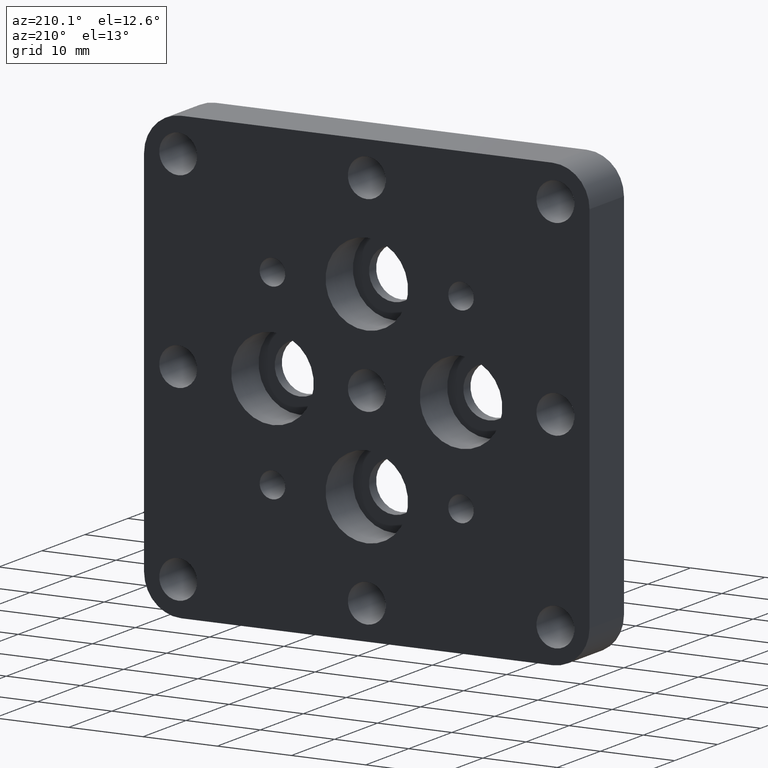
[diagram: clean part render]
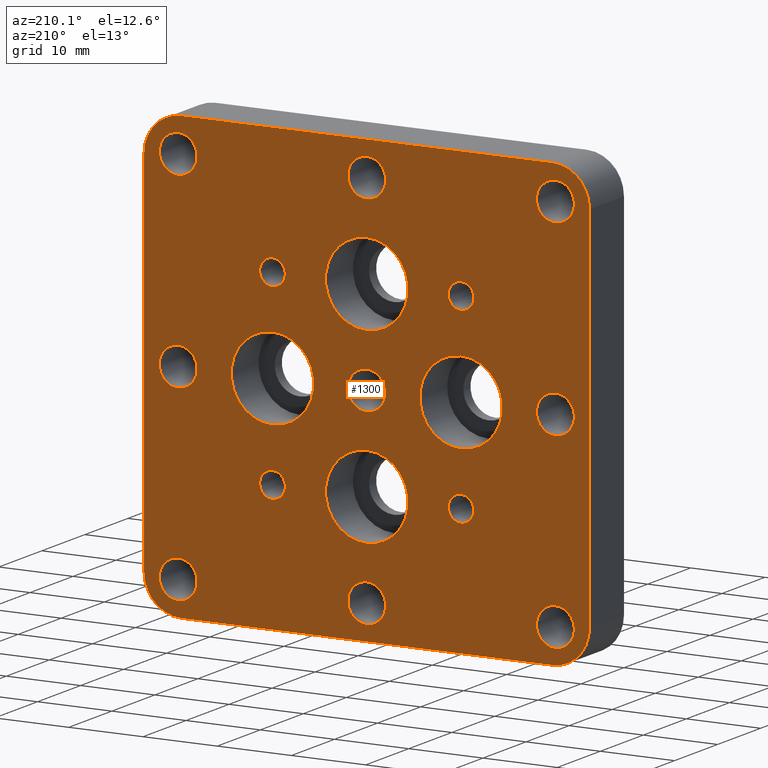
[diagram: same view with one face highlighted and labeled with its STEP entity id]
A machine part, auxiliary view. The second image highlights one B-rep face of the part: STEP entity #1300.
In plain terms, the highlighted planar face has unit normal (-0, 1, 0).
Its self-contained STEP definition (entity closure, byte-faithful):
#6 = EDGE_CURVE ( 'NONE', #554, #1283, #904, .T. ) ;
#7 = DIRECTION ( 'NONE',  ( 0.0000000000000000000, 0.0000000000000000000, 1.000000000000000000 ) ) ;
#12 = CIRCLE ( 'NONE', #1315, 2.552699999999998000 ) ;
#18 = EDGE_CURVE ( 'NONE', #1414, #1514, #625, .T. ) ;
#24 = CARTESIAN_POINT ( 'NONE',  ( -24.99999999999999600, 8.000000000000000000, -29.99999999999999600 ) ) ;
#32 = DIRECTION ( 'NONE',  ( 0.0000000000000000000, 0.0000000000000000000, 1.000000000000000000 ) ) ;
#37 = VERTEX_POINT ( 'NONE', #192 ) ;
#47 = AXIS2_PLACEMENT_3D ( 'NONE', #464, #1209, #627 ) ;
#58 = DIRECTION ( 'NONE',  ( 0.0000000000000000000, 0.0000000000000000000, 1.000000000000000000 ) ) ;
#62 = DIRECTION ( 'NONE',  ( -0.0000000000000000000, 1.000000000000000000, 0.0000000000000000000 ) ) ;
#67 = CARTESIAN_POINT ( 'NONE',  ( 25.40000000000000200, 8.000000000000000000, 22.84730000000000100 ) ) ;
#70 = VERTEX_POINT ( 'NONE', #1408 ) ;
#72 = AXIS2_PLACEMENT_3D ( 'NONE', #963, #1583, #1714 ) ;
#74 = EDGE_LOOP ( 'NONE', ( #1261, #1696 ) ) ;
#78 = CARTESIAN_POINT ( 'NONE',  ( 25.40000000000000200, 8.000000000000000000, 27.95269999999999700 ) ) ;
#87 = DIRECTION ( 'NONE',  ( 0.0000000000000000000, 0.0000000000000000000, 1.000000000000000000 ) ) ;
#92 = VERTEX_POINT ( 'NONE', #78 ) ;
#98 = AXIS2_PLACEMENT_3D ( 'NONE', #1937, #1798, #136 ) ;
#101 = CARTESIAN_POINT ( 'NONE',  ( -30.00000000000000000, 8.000000000000000000, -24.99999999999999300 ) ) ;
#112 = AXIS2_PLACEMENT_3D ( 'NONE', #184, #652, #780 ) ;
#115 = AXIS2_PLACEMENT_3D ( 'NONE', #655, #944, #58 ) ;
#118 = ORIENTED_EDGE ( 'NONE', *, *, #948, .F. ) ;
#119 = CARTESIAN_POINT ( 'NONE',  ( 1.555301434917207900E-015, 8.000000000000000000, -22.84730000000000100 ) ) ;
#120 = VERTEX_POINT ( 'NONE', #668 ) ;
#136 = DIRECTION ( 'NONE',  ( 0.0000000000000000000, 0.0000000000000000000, 1.000000000000000000 ) ) ;
#137 = AXIS2_PLACEMENT_3D ( 'NONE', #1872, #953, #1262 ) ;
#142 = DIRECTION ( 'NONE',  ( 1.000000000000000000, 0.0000000000000000000, -1.156482317317871500E-016 ) ) ;
#143 = ORIENTED_EDGE ( 'NONE', *, *, #733, .T. ) ;
#146 = CARTESIAN_POINT ( 'NONE',  ( -12.70000000000070800, 8.000000000000000000, -10.97279999999930000 ) ) ;
#150 = CARTESIAN_POINT ( 'NONE',  ( -12.69999999999999900, 8.000000000000000000, 3.110602869834276100E-015 ) ) ;
#151 = FACE_BOUND ( 'NONE', #1833, .T. ) ;
#153 = CARTESIAN_POINT ( 'NONE',  ( 0.0000000000000000000, 8.000000000000000000, -7.143750000000000700 ) ) ;
#156 = AXIS2_PLACEMENT_3D ( 'NONE', #686, #379, #959 ) ;
#168 = VERTEX_POINT ( 'NONE', #1737 ) ;
#169 = ORIENTED_EDGE ( 'NONE', *, *, #1478, .F. ) ;
#180 = DIRECTION ( 'NONE',  ( 0.0000000000000000000, 0.0000000000000000000, 1.000000000000000000 ) ) ;
#184 = CARTESIAN_POINT ( 'NONE',  ( 25.40000000000000200, 8.000000000000000000, 25.39999999999999900 ) ) ;
#192 = CARTESIAN_POINT ( 'NONE',  ( 1.867917023335478200E-015, 8.000000000000000000, 22.84730000000000100 ) ) ;
#194 = LINE ( 'NONE', #1496, #341 ) ;
#201 = AXIS2_PLACEMENT_3D ( 'NONE', #1535, #1046, #1669 ) ;
#208 = ORIENTED_EDGE ( 'NONE', *, *, #397, .F. ) ;
#212 = CARTESIAN_POINT ( 'NONE',  ( -12.70000000000070800, 8.000000000000000000, -12.69999999999929800 ) ) ;
#221 = CIRCLE ( 'NONE', #1900, 2.552699999999998000 ) ;
#223 = VECTOR ( 'NONE', #278, 1000.000000000000000 ) ;
#227 = CARTESIAN_POINT ( 'NONE',  ( 1.867917023335552300E-015, 8.000000000000000000, -27.95269999999999700 ) ) ;
#228 = CIRCLE ( 'NONE', #974, 1.727199999999998100 ) ;
#235 = CARTESIAN_POINT ( 'NONE',  ( -29.99999999999999600, 8.000000000000000000, 24.99999999999999600 ) ) ;
#239 = AXIS2_PLACEMENT_3D ( 'NONE', #150, #1517, #1949 ) ;
#244 = VECTOR ( 'NONE', #804, 1000.000000000000000 ) ;
#253 = ORIENTED_EDGE ( 'NONE', *, *, #1571, .F. ) ;
#256 = DIRECTION ( 'NONE',  ( -0.0000000000000000000, 1.000000000000000000, 0.0000000000000000000 ) ) ;
#258 = VERTEX_POINT ( 'NONE', #1276 ) ;
#265 = ORIENTED_EDGE ( 'NONE', *, *, #1515, .F. ) ;
#275 = EDGE_CURVE ( 'NONE', #1213, #92, #12, .T. ) ;
#278 = DIRECTION ( 'NONE',  ( -0.0000000000000000000, -0.0000000000000000000, -1.000000000000000000 ) ) ;
#279 = AXIS2_PLACEMENT_3D ( 'NONE', #1879, #813, #1735 ) ;
#289 = CARTESIAN_POINT ( 'NONE',  ( 12.69999999999999900, 8.000000000000000000, -5.556249999999998600 ) ) ;
#291 = EDGE_CURVE ( 'NONE', #1044, #375, #757, .T. ) ;
#304 = AXIS2_PLACEMENT_3D ( 'NONE', #1260, #680, #960 ) ;
#306 = DIRECTION ( 'NONE',  ( 0.0000000000000000000, 0.0000000000000000000, 1.000000000000000000 ) ) ;
#308 = CARTESIAN_POINT ( 'NONE',  ( 12.69999999999999900, 8.000000000000000000, 5.556249999999998600 ) ) ;
#326 = CARTESIAN_POINT ( 'NONE',  ( -25.39999999999999500, 8.000000000000000000, -25.40000000000000600 ) ) ;
#329 = EDGE_LOOP ( 'NONE', ( #1924, #855 ) ) ;
#332 = CARTESIAN_POINT ( 'NONE',  ( -25.39999999999999500, 8.000000000000000000, -25.40000000000000600 ) ) ;
#337 = VERTEX_POINT ( 'NONE', #1940 ) ;
#341 = VECTOR ( 'NONE', #142, 1000.000000000000000 ) ;
#349 = VERTEX_POINT ( 'NONE', #1925 ) ;
#350 = DIRECTION ( 'NONE',  ( -0.0000000000000000000, 1.000000000000000000, -0.0000000000000000000 ) ) ;
#356 = DIRECTION ( 'NONE',  ( 0.0000000000000000000, 0.0000000000000000000, 1.000000000000000000 ) ) ;
#359 = FACE_BOUND ( 'NONE', #1602, .T. ) ;
#365 = CIRCLE ( 'NONE', #72, 2.552699999999998000 ) ;
#366 = DIRECTION ( 'NONE',  ( -0.0000000000000000000, 1.000000000000000000, 0.0000000000000000000 ) ) ;
#369 = EDGE_LOOP ( 'NONE', ( #1764, #1142 ) ) ;
#372 = ORIENTED_EDGE ( 'NONE', *, *, #1280, .F. ) ;
#375 = VERTEX_POINT ( 'NONE', #873 ) ;
#379 = DIRECTION ( 'NONE',  ( -0.0000000000000000000, 1.000000000000000000, -0.0000000000000000000 ) ) ;
#380 = CIRCLE ( 'NONE', #942, 1.727199999999999800 ) ;
#381 = EDGE_CURVE ( 'NONE', #120, #1291, #228, .T. ) ;
#382 = CIRCLE ( 'NONE', #1345, 2.552699999999998400 ) ;
#383 = CIRCLE ( 'NONE', #1605, 2.552699999999998000 ) ;
#395 = VERTEX_POINT ( 'NONE', #146 ) ;
#396 = CARTESIAN_POINT ( 'NONE',  ( -30.00000000000000000, 8.000000000000000000, -29.99999999999999600 ) ) ;
#397 = EDGE_CURVE ( 'NONE', #1656, #1930, #1154, .T. ) ;
#406 = FACE_BOUND ( 'NONE', #74, .T. ) ;
#410 = EDGE_CURVE ( 'NONE', #1930, #1656, #414, .T. ) ;
#411 = CARTESIAN_POINT ( 'NONE',  ( -29.99999999999999600, 8.000000000000000000, 30.00000000000000400 ) ) ;
#413 = AXIS2_PLACEMENT_3D ( 'NONE', #1636, #1786, #880 ) ;
#414 = CIRCLE ( 'NONE', #1183, 2.552699999999998000 ) ;
#432 = CIRCLE ( 'NONE', #673, 1.727199999999998100 ) ;
#438 = EDGE_CURVE ( 'NONE', #375, #1044, #738, .T. ) ;
#447 = EDGE_LOOP ( 'NONE', ( #1392, #265 ) ) ;
#452 = AXIS2_PLACEMENT_3D ( 'NONE', #1186, #1508, #1331 ) ;
#455 = FACE_BOUND ( 'NONE', #487, .T. ) ;
#456 = CIRCLE ( 'NONE', #831, 5.000000000000000900 ) ;
#458 = EDGE_CURVE ( 'NONE', #527, #779, #1808, .T. ) ;
#460 = EDGE_LOOP ( 'NONE', ( #1653, #671 ) ) ;
#464 = CARTESIAN_POINT ( 'NONE',  ( 25.39999999999999900, 8.000000000000000000, 0.0000000000000000000 ) ) ;
#468 = ORIENTED_EDGE ( 'NONE', *, *, #631, .F. ) ;
#469 = VERTEX_POINT ( 'NONE', #1951 ) ;
#470 = CARTESIAN_POINT ( 'NONE',  ( -25.39999999999999500, 8.000000000000000000, 25.40000000000000600 ) ) ;
#481 = CARTESIAN_POINT ( 'NONE',  ( -24.99999999999999300, 8.000000000000000000, 25.00000000000000000 ) ) ;
#483 = VERTEX_POINT ( 'NONE', #153 ) ;
#484 = DIRECTION ( 'NONE',  ( 0.0000000000000000000, 0.0000000000000000000, 1.000000000000000000 ) ) ;
#487 = EDGE_LOOP ( 'NONE', ( #1405, #372 ) ) ;
#489 = CARTESIAN_POINT ( 'NONE',  ( 12.69999999999999900, 8.000000000000000000, 0.0000000000000000000 ) ) ;
#491 = ORIENTED_EDGE ( 'NONE', *, *, #709, .F. ) ;
#492 = ORIENTED_EDGE ( 'NONE', *, *, #1179, .F. ) ;
#494 = ORIENTED_EDGE ( 'NONE', *, *, #438, .F. ) ;
#499 = FACE_BOUND ( 'NONE', #460, .T. ) ;
#503 = VERTEX_POINT ( 'NONE', #24 ) ;
#507 = EDGE_LOOP ( 'NONE', ( #1554, #208 ) ) ;
#514 = DIRECTION ( 'NONE',  ( 0.0000000000000000000, 0.0000000000000000000, 1.000000000000000000 ) ) ;
#520 = CARTESIAN_POINT ( 'NONE',  ( -24.99999999999999600, 8.000000000000000000, -24.99999999999999300 ) ) ;
#524 = VERTEX_POINT ( 'NONE', #1842 ) ;
#527 = VERTEX_POINT ( 'NONE', #936 ) ;
#531 = EDGE_LOOP ( 'NONE', ( #947, #492 ) ) ;
#539 = EDGE_CURVE ( 'NONE', #1514, #1414, #621, .T. ) ;
#544 = CIRCLE ( 'NONE', #137, 2.552699999999998000 ) ;
#549 = CARTESIAN_POINT ( 'NONE',  ( 25.40000000000000200, 8.000000000000000000, 25.39999999999999900 ) ) ;
#552 = CARTESIAN_POINT ( 'NONE',  ( -30.00000000000000000, 8.000000000000000000, -29.99999999999999600 ) ) ;
#554 = VERTEX_POINT ( 'NONE', #943 ) ;
#555 = CARTESIAN_POINT ( 'NONE',  ( 25.39999999999999900, 8.000000000000000000, -25.39999999999999900 ) ) ;
#563 = DIRECTION ( 'NONE',  ( 0.0000000000000000000, 0.0000000000000000000, 1.000000000000000000 ) ) ;
#567 = DIRECTION ( 'NONE',  ( -0.0000000000000000000, 1.000000000000000000, -0.0000000000000000000 ) ) ;
#571 = EDGE_CURVE ( 'NONE', #92, #1213, #1826, .T. ) ;
#572 = CARTESIAN_POINT ( 'NONE',  ( 12.69999999999929900, 8.000000000000000000, -14.42719999999999900 ) ) ;
#578 = AXIS2_PLACEMENT_3D ( 'NONE', #698, #817, #848 ) ;
#581 = ORIENTED_EDGE ( 'NONE', *, *, #1461, .T. ) ;
#590 = ORIENTED_EDGE ( 'NONE', *, *, #1719, .F. ) ;
#591 = DIRECTION ( 'NONE',  ( 0.0000000000000000000, 0.0000000000000000000, 1.000000000000000000 ) ) ;
#595 = CIRCLE ( 'NONE', #201, 2.552699999999998000 ) ;
#603 = CARTESIAN_POINT ( 'NONE',  ( 25.39999999999999900, 8.000000000000000000, -27.95269999999999700 ) ) ;
#604 = AXIS2_PLACEMENT_3D ( 'NONE', #481, #366, #7 ) ;
#608 = VERTEX_POINT ( 'NONE', #647 ) ;
#610 = EDGE_CURVE ( 'NONE', #1114, #1257, #1270, .T. ) ;
#614 = CARTESIAN_POINT ( 'NONE',  ( -25.39999999999999500, 8.000000000000000000, -22.84730000000000800 ) ) ;
#620 = LINE ( 'NONE', #1626, #223 ) ;
#621 = CIRCLE ( 'NONE', #1861, 5.556249999999998600 ) ;
#625 = CIRCLE ( 'NONE', #1504, 5.556249999999998600 ) ;
#627 = DIRECTION ( 'NONE',  ( 0.0000000000000000000, 0.0000000000000000000, 1.000000000000000000 ) ) ;
#629 = CARTESIAN_POINT ( 'NONE',  ( 24.99999999999999600, 8.000000000000000000, 24.99999999999998900 ) ) ;
#630 = ORIENTED_EDGE ( 'NONE', *, *, #1390, .T. ) ;
#631 = EDGE_CURVE ( 'NONE', #1283, #554, #365, .T. ) ;
#633 = DIRECTION ( 'NONE',  ( 0.0000000000000000000, 0.0000000000000000000, 1.000000000000000000 ) ) ;
#634 = CARTESIAN_POINT ( 'NONE',  ( 30.00000000000000000, 8.000000000000000000, -24.99999999999999300 ) ) ;
#636 = LINE ( 'NONE', #552, #1444 ) ;
#638 = CIRCLE ( 'NONE', #789, 5.556249999999998600 ) ;
#647 = CARTESIAN_POINT ( 'NONE',  ( -12.70000000000000100, 8.000000000000000000, 14.42720000000070400 ) ) ;
#652 = DIRECTION ( 'NONE',  ( -0.0000000000000000000, 1.000000000000000000, -0.0000000000000000000 ) ) ;
#654 = EDGE_CURVE ( 'NONE', #168, #70, #1477, .T. ) ;
#655 = CARTESIAN_POINT ( 'NONE',  ( 24.99999999999999300, 8.000000000000000000, -24.99999999999999300 ) ) ;
#659 = DIRECTION ( 'NONE',  ( -0.0000000000000000000, 1.000000000000000000, -0.0000000000000000000 ) ) ;
#663 = DIRECTION ( 'NONE',  ( -0.0000000000000000000, 1.000000000000000000, -0.0000000000000000000 ) ) ;
#668 = CARTESIAN_POINT ( 'NONE',  ( 12.69999999999929900, 8.000000000000000000, -10.97280000000000300 ) ) ;
#671 = ORIENTED_EDGE ( 'NONE', *, *, #1613, .F. ) ;
#673 = AXIS2_PLACEMENT_3D ( 'NONE', #1678, #1374, #1068 ) ;
#680 = DIRECTION ( 'NONE',  ( -0.0000000000000000000, 1.000000000000000000, -0.0000000000000000000 ) ) ;
#686 = CARTESIAN_POINT ( 'NONE',  ( 1.555301434917133900E-015, 8.000000000000000000, 25.39999999999999900 ) ) ;
#694 = DIRECTION ( 'NONE',  ( 0.0000000000000000000, 0.0000000000000000000, 1.000000000000000000 ) ) ;
#698 = CARTESIAN_POINT ( 'NONE',  ( -25.39999999999999500, 8.000000000000000000, 25.40000000000000600 ) ) ;
#707 = DIRECTION ( 'NONE',  ( 0.0000000000000000000, 0.0000000000000000000, 1.000000000000000000 ) ) ;
#709 = EDGE_CURVE ( 'NONE', #945, #1339, #544, .T. ) ;
#713 = AXIS2_PLACEMENT_3D ( 'NONE', #927, #1067, #484 ) ;
#721 = ORIENTED_EDGE ( 'NONE', *, *, #1849, .F. ) ;
#731 = CIRCLE ( 'NONE', #1553, 1.727199999999998100 ) ;
#733 = EDGE_CURVE ( 'NONE', #503, #1338, #1870, .T. ) ;
#734 = CARTESIAN_POINT ( 'NONE',  ( -12.70000000000000100, 8.000000000000000000, 12.70000000000070500 ) ) ;
#735 = CIRCLE ( 'NONE', #98, 1.727199999999999800 ) ;
#737 = AXIS2_PLACEMENT_3D ( 'NONE', #520, #1433, #87 ) ;
#738 = CIRCLE ( 'NONE', #1806, 5.556249999999998600 ) ;
#750 = DIRECTION ( 'NONE',  ( -0.0000000000000000000, 1.000000000000000000, -0.0000000000000000000 ) ) ;
#753 = CARTESIAN_POINT ( 'NONE',  ( 1.555301434917207900E-015, 8.000000000000000000, -25.39999999999999900 ) ) ;
#757 = CIRCLE ( 'NONE', #413, 5.556249999999998600 ) ;
#767 = EDGE_CURVE ( 'NONE', #1339, #945, #1053, .T. ) ;
#768 = CARTESIAN_POINT ( 'NONE',  ( -12.69999999999999900, 8.000000000000000000, 5.556250000000002100 ) ) ;
#775 = DIRECTION ( 'NONE',  ( 0.0000000000000000000, 0.0000000000000000000, 1.000000000000000000 ) ) ;
#779 = VERTEX_POINT ( 'NONE', #1593 ) ;
#780 = DIRECTION ( 'NONE',  ( 0.0000000000000000000, 0.0000000000000000000, 1.000000000000000000 ) ) ;
#789 = AXIS2_PLACEMENT_3D ( 'NONE', #1456, #659, #514 ) ;
#792 = FACE_BOUND ( 'NONE', #531, .T. ) ;
#804 = DIRECTION ( 'NONE',  ( 5.782411586589357400E-017, 0.0000000000000000000, 1.000000000000000000 ) ) ;
#813 = DIRECTION ( 'NONE',  ( -0.0000000000000000000, 1.000000000000000000, -0.0000000000000000000 ) ) ;
#817 = DIRECTION ( 'NONE',  ( -0.0000000000000000000, 1.000000000000000000, -0.0000000000000000000 ) ) ;
#826 = CARTESIAN_POINT ( 'NONE',  ( 12.70000000000000100, 8.000000000000000000, 12.69999999999999900 ) ) ;
#831 = AXIS2_PLACEMENT_3D ( 'NONE', #629, #62, #1822 ) ;
#833 = VERTEX_POINT ( 'NONE', #1756 ) ;
#838 = ORIENTED_EDGE ( 'NONE', *, *, #458, .F. ) ;
#841 = ORIENTED_EDGE ( 'NONE', *, *, #1745, .T. ) ;
#848 = DIRECTION ( 'NONE',  ( 0.0000000000000000000, 0.0000000000000000000, 1.000000000000000000 ) ) ;
#850 = AXIS2_PLACEMENT_3D ( 'NONE', #1116, #1898, #983 ) ;
#855 = ORIENTED_EDGE ( 'NONE', *, *, #1815, .F. ) ;
#869 = CARTESIAN_POINT ( 'NONE',  ( 25.39999999999999900, 8.000000000000000000, -22.84730000000000100 ) ) ;
#873 = CARTESIAN_POINT ( 'NONE',  ( 0.0000000000000000000, 8.000000000000000000, 18.25624999999999800 ) ) ;
#880 = DIRECTION ( 'NONE',  ( 0.0000000000000000000, 0.0000000000000000000, 1.000000000000000000 ) ) ;
#886 = CARTESIAN_POINT ( 'NONE',  ( 24.99999999999999300, 8.000000000000000000, -29.99999999999999600 ) ) ;
#896 = FACE_BOUND ( 'NONE', #329, .T. ) ;
#898 = EDGE_CURVE ( 'NONE', #1388, #1607, #620, .T. ) ;
#903 = CARTESIAN_POINT ( 'NONE',  ( 0.0000000000000000000, 8.000000000000000000, 12.69999999999999900 ) ) ;
#904 = CIRCLE ( 'NONE', #713, 2.552699999999998000 ) ;
#905 = ORIENTED_EDGE ( 'NONE', *, *, #291, .F. ) ;
#907 = DIRECTION ( 'NONE',  ( 0.0000000000000000000, 0.0000000000000000000, 1.000000000000000000 ) ) ;
#910 = DIRECTION ( 'NONE',  ( -0.0000000000000000000, 1.000000000000000000, -0.0000000000000000000 ) ) ;
#914 = ORIENTED_EDGE ( 'NONE', *, *, #275, .F. ) ;
#927 = CARTESIAN_POINT ( 'NONE',  ( -25.39999999999999900, 8.000000000000000000, 3.110602869834267800E-015 ) ) ;
#933 = LINE ( 'NONE', #396, #244 ) ;
#936 = CARTESIAN_POINT ( 'NONE',  ( -25.39999999999999500, 8.000000000000000000, 27.95270000000000400 ) ) ;
#942 = AXIS2_PLACEMENT_3D ( 'NONE', #734, #1203, #591 ) ;
#943 = CARTESIAN_POINT ( 'NONE',  ( -25.39999999999999900, 8.000000000000000000, -2.552699999999994900 ) ) ;
#944 = DIRECTION ( 'NONE',  ( -0.0000000000000000000, 1.000000000000000000, 0.0000000000000000000 ) ) ;
#945 = VERTEX_POINT ( 'NONE', #603 ) ;
#946 = VERTEX_POINT ( 'NONE', #886 ) ;
#947 = ORIENTED_EDGE ( 'NONE', *, *, #1238, .F. ) ;
#948 = EDGE_CURVE ( 'NONE', #1257, #1114, #1450, .T. ) ;
#950 = CARTESIAN_POINT ( 'NONE',  ( 24.99999999999999600, 8.000000000000000000, 29.99999999999999600 ) ) ;
#953 = DIRECTION ( 'NONE',  ( -0.0000000000000000000, 1.000000000000000000, -0.0000000000000000000 ) ) ;
#959 = DIRECTION ( 'NONE',  ( 0.0000000000000000000, 0.0000000000000000000, 1.000000000000000000 ) ) ;
#960 = DIRECTION ( 'NONE',  ( 0.0000000000000000000, 0.0000000000000000000, 1.000000000000000000 ) ) ;
#962 = ORIENTED_EDGE ( 'NONE', *, *, #571, .F. ) ;
#963 = CARTESIAN_POINT ( 'NONE',  ( -25.39999999999999900, 8.000000000000000000, 3.110602869834267800E-015 ) ) ;
#970 = DIRECTION ( 'NONE',  ( -0.0000000000000000000, 1.000000000000000000, -0.0000000000000000000 ) ) ;
#974 = AXIS2_PLACEMENT_3D ( 'NONE', #1020, #567, #1013 ) ;
#979 = FACE_BOUND ( 'NONE', #1573, .T. ) ;
#980 = CIRCLE ( 'NONE', #850, 1.727199999999999800 ) ;
#983 = DIRECTION ( 'NONE',  ( 0.0000000000000000000, 0.0000000000000000000, 1.000000000000000000 ) ) ;
#986 = CARTESIAN_POINT ( 'NONE',  ( 30.00000000000000000, 8.000000000000000000, 24.99999999999997900 ) ) ;
#987 = EDGE_CURVE ( 'NONE', #608, #349, #735, .T. ) ;
#993 = CARTESIAN_POINT ( 'NONE',  ( 25.39999999999999900, 8.000000000000000000, -2.552699999999998000 ) ) ;
#1002 = DIRECTION ( 'NONE',  ( 0.0000000000000000000, -0.0000000000000000000, 1.000000000000000000 ) ) ;
#1013 = DIRECTION ( 'NONE',  ( 0.0000000000000000000, 0.0000000000000000000, 1.000000000000000000 ) ) ;
#1020 = CARTESIAN_POINT ( 'NONE',  ( 12.69999999999929900, 8.000000000000000000, -12.70000000000000100 ) ) ;
#1027 = EDGE_CURVE ( 'NONE', #1741, #1388, #456, .T. ) ;
#1029 = FACE_BOUND ( 'NONE', #1580, .T. ) ;
#1044 = VERTEX_POINT ( 'NONE', #1363 ) ;
#1046 = DIRECTION ( 'NONE',  ( -0.0000000000000000000, 1.000000000000000000, -0.0000000000000000000 ) ) ;
#1047 = ORIENTED_EDGE ( 'NONE', *, *, #1059, .T. ) ;
#1049 = FACE_BOUND ( 'NONE', #1853, .T. ) ;
#1053 = CIRCLE ( 'NONE', #1168, 2.552699999999998000 ) ;
#1059 = EDGE_CURVE ( 'NONE', #1285, #469, #1121, .T. ) ;
#1067 = DIRECTION ( 'NONE',  ( -0.0000000000000000000, 1.000000000000000000, -0.0000000000000000000 ) ) ;
#1068 = DIRECTION ( 'NONE',  ( 0.0000000000000000000, 0.0000000000000000000, 1.000000000000000000 ) ) ;
#1072 = FACE_BOUND ( 'NONE', #1630, .T. ) ;
#1083 = ORIENTED_EDGE ( 'NONE', *, *, #610, .F. ) ;
#1084 = DIRECTION ( 'NONE',  ( -0.0000000000000000000, 1.000000000000000000, -0.0000000000000000000 ) ) ;
#1113 = EDGE_CURVE ( 'NONE', #1192, #37, #595, .T. ) ;
#1114 = VERTEX_POINT ( 'NONE', #768 ) ;
#1116 = CARTESIAN_POINT ( 'NONE',  ( 12.70000000000000100, 8.000000000000000000, 12.69999999999999900 ) ) ;
#1117 = DIRECTION ( 'NONE',  ( -0.0000000000000000000, 1.000000000000000000, -0.0000000000000000000 ) ) ;
#1119 = FACE_BOUND ( 'NONE', #1489, .T. ) ;
#1121 = CIRCLE ( 'NONE', #604, 5.000000000000000900 ) ;
#1142 = ORIENTED_EDGE ( 'NONE', *, *, #1208, .F. ) ;
#1150 = FACE_BOUND ( 'NONE', #369, .T. ) ;
#1154 = CIRCLE ( 'NONE', #452, 2.552699999999998000 ) ;
#1159 = VERTEX_POINT ( 'NONE', #614 ) ;
#1168 = AXIS2_PLACEMENT_3D ( 'NONE', #555, #1910, #694 ) ;
#1179 = EDGE_CURVE ( 'NONE', #833, #483, #1240, .T. ) ;
#1183 = AXIS2_PLACEMENT_3D ( 'NONE', #753, #1830, #1513 ) ;
#1186 = CARTESIAN_POINT ( 'NONE',  ( 1.555301434917207900E-015, 8.000000000000000000, -25.39999999999999900 ) ) ;
#1192 = VERTEX_POINT ( 'NONE', #1877 ) ;
#1198 = FACE_BOUND ( 'NONE', #1604, .T. ) ;
#1203 = DIRECTION ( 'NONE',  ( -0.0000000000000000000, 1.000000000000000000, -0.0000000000000000000 ) ) ;
#1208 = EDGE_CURVE ( 'NONE', #258, #337, #1749, .T. ) ;
#1209 = DIRECTION ( 'NONE',  ( -0.0000000000000000000, 1.000000000000000000, -0.0000000000000000000 ) ) ;
#1212 = ORIENTED_EDGE ( 'NONE', *, *, #767, .F. ) ;
#1213 = VERTEX_POINT ( 'NONE', #67 ) ;
#1218 = CIRCLE ( 'NONE', #47, 2.552699999999998000 ) ;
#1238 = EDGE_CURVE ( 'NONE', #483, #833, #638, .T. ) ;
#1240 = CIRCLE ( 'NONE', #304, 5.556249999999998600 ) ;
#1244 = EDGE_CURVE ( 'NONE', #1338, #1285, #933, .T. ) ;
#1255 = EDGE_CURVE ( 'NONE', #70, #168, #382, .T. ) ;
#1257 = VERTEX_POINT ( 'NONE', #1273 ) ;
#1259 = ORIENTED_EDGE ( 'NONE', *, *, #898, .T. ) ;
#1260 = CARTESIAN_POINT ( 'NONE',  ( 0.0000000000000000000, 8.000000000000000000, -12.69999999999999900 ) ) ;
#1261 = ORIENTED_EDGE ( 'NONE', *, *, #539, .F. ) ;
#1262 = DIRECTION ( 'NONE',  ( 0.0000000000000000000, 0.0000000000000000000, 1.000000000000000000 ) ) ;
#1265 = DIRECTION ( 'NONE',  ( 0.0000000000000000000, 0.0000000000000000000, 1.000000000000000000 ) ) ;
#1267 = CARTESIAN_POINT ( 'NONE',  ( -25.39999999999999900, 8.000000000000000000, 2.552700000000001100 ) ) ;
#1270 = CIRCLE ( 'NONE', #1827, 5.556249999999998600 ) ;
#1273 = CARTESIAN_POINT ( 'NONE',  ( -12.69999999999999900, 8.000000000000000000, -5.556249999999995000 ) ) ;
#1276 = CARTESIAN_POINT ( 'NONE',  ( 12.70000000000000100, 8.000000000000000000, 10.97279999999999900 ) ) ;
#1280 = EDGE_CURVE ( 'NONE', #1291, #120, #731, .T. ) ;
#1283 = VERTEX_POINT ( 'NONE', #1267 ) ;
#1285 = VERTEX_POINT ( 'NONE', #235 ) ;
#1291 = VERTEX_POINT ( 'NONE', #572 ) ;
#1294 = FACE_BOUND ( 'NONE', #1440, .T. ) ;
#1300 = ADVANCED_FACE ( 'NONE', ( #979, #896, #1072, #1803, #151, #1150, #1294, #499, #455, #1198, #792, #406, #359, #1393, #1119, #1029, #1049, #1886 ), #1319, .T. ) ;
#1312 = DIRECTION ( 'NONE',  ( -1.000000000000000000, -0.0000000000000000000, -0.0000000000000000000 ) ) ;
#1315 = AXIS2_PLACEMENT_3D ( 'NONE', #549, #1616, #707 ) ;
#1319 = PLANE ( 'NONE',  #1519 ) ;
#1331 = DIRECTION ( 'NONE',  ( 0.0000000000000000000, 0.0000000000000000000, 1.000000000000000000 ) ) ;
#1338 = VERTEX_POINT ( 'NONE', #101 ) ;
#1339 = VERTEX_POINT ( 'NONE', #869 ) ;
#1345 = AXIS2_PLACEMENT_3D ( 'NONE', #1431, #1117, #1581 ) ;
#1363 = CARTESIAN_POINT ( 'NONE',  ( 6.804443777762480100E-016, 8.000000000000000000, 7.143750000000000700 ) ) ;
#1366 = VERTEX_POINT ( 'NONE', #1929 ) ;
#1374 = DIRECTION ( 'NONE',  ( -0.0000000000000000000, 1.000000000000000000, -0.0000000000000000000 ) ) ;
#1386 = CARTESIAN_POINT ( 'NONE',  ( 12.69999999999999900, 8.000000000000000000, 0.0000000000000000000 ) ) ;
#1388 = VERTEX_POINT ( 'NONE', #986 ) ;
#1390 = EDGE_CURVE ( 'NONE', #946, #503, #636, .T. ) ;
#1392 = ORIENTED_EDGE ( 'NONE', *, *, #1582, .F. ) ;
#1393 = FACE_BOUND ( 'NONE', #447, .T. ) ;
#1398 = CIRCLE ( 'NONE', #115, 5.000000000000000900 ) ;
#1404 = VERTEX_POINT ( 'NONE', #993 ) ;
#1405 = ORIENTED_EDGE ( 'NONE', *, *, #381, .F. ) ;
#1408 = CARTESIAN_POINT ( 'NONE',  ( 3.126155884183446300E-016, 8.000000000000000000, -2.552699999999998400 ) ) ;
#1414 = VERTEX_POINT ( 'NONE', #289 ) ;
#1423 = AXIS2_PLACEMENT_3D ( 'NONE', #470, #750, #907 ) ;
#1431 = CARTESIAN_POINT ( 'NONE',  ( 0.0000000000000000000, 8.000000000000000000, 0.0000000000000000000 ) ) ;
#1433 = DIRECTION ( 'NONE',  ( -0.0000000000000000000, 1.000000000000000000, 0.0000000000000000000 ) ) ;
#1440 = EDGE_LOOP ( 'NONE', ( #1895, #169 ) ) ;
#1444 = VECTOR ( 'NONE', #1312, 1000.000000000000000 ) ;
#1450 = CIRCLE ( 'NONE', #239, 5.556249999999998600 ) ;
#1456 = CARTESIAN_POINT ( 'NONE',  ( 0.0000000000000000000, 8.000000000000000000, -12.69999999999999900 ) ) ;
#1459 = ORIENTED_EDGE ( 'NONE', *, *, #1255, .F. ) ;
#1461 = EDGE_CURVE ( 'NONE', #469, #1741, #194, .T. ) ;
#1462 = VERTEX_POINT ( 'NONE', #1488 ) ;
#1468 = ORIENTED_EDGE ( 'NONE', *, *, #6, .F. ) ;
#1476 = DIRECTION ( 'NONE',  ( -0.0000000000000000000, 1.000000000000000000, -0.0000000000000000000 ) ) ;
#1477 = CIRCLE ( 'NONE', #279, 2.552699999999998400 ) ;
#1478 = EDGE_CURVE ( 'NONE', #349, #608, #380, .T. ) ;
#1484 = ORIENTED_EDGE ( 'NONE', *, *, #654, .F. ) ;
#1488 = CARTESIAN_POINT ( 'NONE',  ( 25.39999999999999900, 8.000000000000000000, 2.552699999999998000 ) ) ;
#1489 = EDGE_LOOP ( 'NONE', ( #838, #721 ) ) ;
#1496 = CARTESIAN_POINT ( 'NONE',  ( -29.99999999999999600, 8.000000000000000000, 30.00000000000000400 ) ) ;
#1504 = AXIS2_PLACEMENT_3D ( 'NONE', #1386, #1551, #633 ) ;
#1508 = DIRECTION ( 'NONE',  ( -0.0000000000000000000, 1.000000000000000000, -0.0000000000000000000 ) ) ;
#1513 = DIRECTION ( 'NONE',  ( 0.0000000000000000000, 0.0000000000000000000, 1.000000000000000000 ) ) ;
#1514 = VERTEX_POINT ( 'NONE', #308 ) ;
#1515 = EDGE_CURVE ( 'NONE', #1366, #1159, #221, .T. ) ;
#1517 = DIRECTION ( 'NONE',  ( -0.0000000000000000000, 1.000000000000000000, -0.0000000000000000000 ) ) ;
#1519 = AXIS2_PLACEMENT_3D ( 'NONE', #411, #256, #1002 ) ;
#1535 = CARTESIAN_POINT ( 'NONE',  ( 1.555301434917133900E-015, 8.000000000000000000, 25.39999999999999900 ) ) ;
#1541 = CIRCLE ( 'NONE', #1767, 2.552699999999998000 ) ;
#1551 = DIRECTION ( 'NONE',  ( -0.0000000000000000000, 1.000000000000000000, -0.0000000000000000000 ) ) ;
#1553 = AXIS2_PLACEMENT_3D ( 'NONE', #1754, #1476, #563 ) ;
#1554 = ORIENTED_EDGE ( 'NONE', *, *, #410, .F. ) ;
#1559 = CARTESIAN_POINT ( 'NONE',  ( 25.39999999999999900, 8.000000000000000000, 0.0000000000000000000 ) ) ;
#1571 = EDGE_CURVE ( 'NONE', #1404, #1462, #1218, .T. ) ;
#1573 = EDGE_LOOP ( 'NONE', ( #590, #253 ) ) ;
#1578 = ORIENTED_EDGE ( 'NONE', *, *, #1244, .T. ) ;
#1580 = EDGE_LOOP ( 'NONE', ( #962, #914 ) ) ;
#1581 = DIRECTION ( 'NONE',  ( 0.0000000000000000000, 0.0000000000000000000, 1.000000000000000000 ) ) ;
#1582 = EDGE_CURVE ( 'NONE', #1159, #1366, #1541, .T. ) ;
#1583 = DIRECTION ( 'NONE',  ( -0.0000000000000000000, 1.000000000000000000, -0.0000000000000000000 ) ) ;
#1593 = CARTESIAN_POINT ( 'NONE',  ( -25.39999999999999500, 8.000000000000000000, 22.84730000000000800 ) ) ;
#1598 = DIRECTION ( 'NONE',  ( 0.0000000000000000000, 0.0000000000000000000, 1.000000000000000000 ) ) ;
#1602 = EDGE_LOOP ( 'NONE', ( #1083, #118 ) ) ;
#1604 = EDGE_LOOP ( 'NONE', ( #494, #905 ) ) ;
#1605 = AXIS2_PLACEMENT_3D ( 'NONE', #1559, #663, #1869 ) ;
#1607 = VERTEX_POINT ( 'NONE', #634 ) ;
#1613 = EDGE_CURVE ( 'NONE', #524, #395, #432, .T. ) ;
#1616 = DIRECTION ( 'NONE',  ( -0.0000000000000000000, 1.000000000000000000, -0.0000000000000000000 ) ) ;
#1626 = CARTESIAN_POINT ( 'NONE',  ( 30.00000000000000000, 8.000000000000000000, -29.99999999999999600 ) ) ;
#1630 = EDGE_LOOP ( 'NONE', ( #468, #1468 ) ) ;
#1636 = CARTESIAN_POINT ( 'NONE',  ( 0.0000000000000000000, 8.000000000000000000, 12.69999999999999900 ) ) ;
#1644 = EDGE_CURVE ( 'NONE', #395, #524, #1889, .T. ) ;
#1653 = ORIENTED_EDGE ( 'NONE', *, *, #1644, .F. ) ;
#1656 = VERTEX_POINT ( 'NONE', #227 ) ;
#1665 = DIRECTION ( 'NONE',  ( -0.0000000000000000000, 1.000000000000000000, -0.0000000000000000000 ) ) ;
#1669 = DIRECTION ( 'NONE',  ( 0.0000000000000000000, 0.0000000000000000000, 1.000000000000000000 ) ) ;
#1671 = AXIS2_PLACEMENT_3D ( 'NONE', #212, #1850, #1265 ) ;
#1678 = CARTESIAN_POINT ( 'NONE',  ( -12.70000000000070800, 8.000000000000000000, -12.69999999999929800 ) ) ;
#1693 = CARTESIAN_POINT ( 'NONE',  ( -12.69999999999999900, 8.000000000000000000, 3.110602869834276100E-015 ) ) ;
#1696 = ORIENTED_EDGE ( 'NONE', *, *, #18, .F. ) ;
#1714 = DIRECTION ( 'NONE',  ( 0.0000000000000000000, 0.0000000000000000000, 1.000000000000000000 ) ) ;
#1719 = EDGE_CURVE ( 'NONE', #1462, #1404, #383, .T. ) ;
#1721 = ORIENTED_EDGE ( 'NONE', *, *, #1027, .T. ) ;
#1735 = DIRECTION ( 'NONE',  ( 0.0000000000000000000, 0.0000000000000000000, 1.000000000000000000 ) ) ;
#1737 = CARTESIAN_POINT ( 'NONE',  ( 0.0000000000000000000, 8.000000000000000000, 2.552699999999998400 ) ) ;
#1741 = VERTEX_POINT ( 'NONE', #950 ) ;
#1745 = EDGE_CURVE ( 'NONE', #1607, #946, #1398, .T. ) ;
#1749 = CIRCLE ( 'NONE', #1913, 1.727199999999999800 ) ;
#1750 = CIRCLE ( 'NONE', #578, 2.552699999999998000 ) ;
#1754 = CARTESIAN_POINT ( 'NONE',  ( 12.69999999999929900, 8.000000000000000000, -12.70000000000000100 ) ) ;
#1756 = CARTESIAN_POINT ( 'NONE',  ( 6.804443777762480100E-016, 8.000000000000000000, -18.25624999999999800 ) ) ;
#1764 = ORIENTED_EDGE ( 'NONE', *, *, #1839, .F. ) ;
#1767 = AXIS2_PLACEMENT_3D ( 'NONE', #332, #1840, #32 ) ;
#1786 = DIRECTION ( 'NONE',  ( -0.0000000000000000000, 1.000000000000000000, -0.0000000000000000000 ) ) ;
#1798 = DIRECTION ( 'NONE',  ( -0.0000000000000000000, 1.000000000000000000, -0.0000000000000000000 ) ) ;
#1803 = FACE_BOUND ( 'NONE', #507, .T. ) ;
#1804 = CIRCLE ( 'NONE', #156, 2.552699999999998000 ) ;
#1806 = AXIS2_PLACEMENT_3D ( 'NONE', #903, #1665, #306 ) ;
#1808 = CIRCLE ( 'NONE', #1423, 2.552699999999998000 ) ;
#1814 = EDGE_LOOP ( 'NONE', ( #1578, #1047, #581, #1721, #1259, #841, #630, #143 ) ) ;
#1815 = EDGE_CURVE ( 'NONE', #37, #1192, #1804, .T. ) ;
#1822 = DIRECTION ( 'NONE',  ( 0.0000000000000000000, 0.0000000000000000000, 1.000000000000000000 ) ) ;
#1826 = CIRCLE ( 'NONE', #112, 2.552699999999998000 ) ;
#1827 = AXIS2_PLACEMENT_3D ( 'NONE', #1693, #350, #775 ) ;
#1830 = DIRECTION ( 'NONE',  ( -0.0000000000000000000, 1.000000000000000000, -0.0000000000000000000 ) ) ;
#1833 = EDGE_LOOP ( 'NONE', ( #1484, #1459 ) ) ;
#1839 = EDGE_CURVE ( 'NONE', #337, #258, #980, .T. ) ;
#1840 = DIRECTION ( 'NONE',  ( -0.0000000000000000000, 1.000000000000000000, -0.0000000000000000000 ) ) ;
#1842 = CARTESIAN_POINT ( 'NONE',  ( -12.70000000000070800, 8.000000000000000000, -14.42719999999929600 ) ) ;
#1849 = EDGE_CURVE ( 'NONE', #779, #527, #1750, .T. ) ;
#1850 = DIRECTION ( 'NONE',  ( -0.0000000000000000000, 1.000000000000000000, -0.0000000000000000000 ) ) ;
#1853 = EDGE_LOOP ( 'NONE', ( #1212, #491 ) ) ;
#1861 = AXIS2_PLACEMENT_3D ( 'NONE', #489, #1084, #356 ) ;
#1869 = DIRECTION ( 'NONE',  ( 0.0000000000000000000, 0.0000000000000000000, 1.000000000000000000 ) ) ;
#1870 = CIRCLE ( 'NONE', #737, 5.000000000000000900 ) ;
#1872 = CARTESIAN_POINT ( 'NONE',  ( 25.39999999999999900, 8.000000000000000000, -25.39999999999999900 ) ) ;
#1877 = CARTESIAN_POINT ( 'NONE',  ( 1.555301434917133900E-015, 8.000000000000000000, 27.95269999999999700 ) ) ;
#1879 = CARTESIAN_POINT ( 'NONE',  ( 0.0000000000000000000, 8.000000000000000000, 0.0000000000000000000 ) ) ;
#1886 = FACE_OUTER_BOUND ( 'NONE', #1814, .T. ) ;
#1889 = CIRCLE ( 'NONE', #1671, 1.727199999999998100 ) ;
#1895 = ORIENTED_EDGE ( 'NONE', *, *, #987, .F. ) ;
#1898 = DIRECTION ( 'NONE',  ( -0.0000000000000000000, 1.000000000000000000, -0.0000000000000000000 ) ) ;
#1900 = AXIS2_PLACEMENT_3D ( 'NONE', #326, #910, #180 ) ;
#1910 = DIRECTION ( 'NONE',  ( -0.0000000000000000000, 1.000000000000000000, -0.0000000000000000000 ) ) ;
#1913 = AXIS2_PLACEMENT_3D ( 'NONE', #826, #970, #1598 ) ;
#1924 = ORIENTED_EDGE ( 'NONE', *, *, #1113, .F. ) ;
#1925 = CARTESIAN_POINT ( 'NONE',  ( -12.70000000000000100, 8.000000000000000000, 10.97280000000070500 ) ) ;
#1929 = CARTESIAN_POINT ( 'NONE',  ( -25.39999999999999500, 8.000000000000000000, -27.95270000000000400 ) ) ;
#1930 = VERTEX_POINT ( 'NONE', #119 ) ;
#1937 = CARTESIAN_POINT ( 'NONE',  ( -12.70000000000000100, 8.000000000000000000, 12.70000000000070500 ) ) ;
#1940 = CARTESIAN_POINT ( 'NONE',  ( 12.70000000000000100, 8.000000000000000000, 14.42719999999999900 ) ) ;
#1949 = DIRECTION ( 'NONE',  ( 0.0000000000000000000, 0.0000000000000000000, 1.000000000000000000 ) ) ;
#1951 = CARTESIAN_POINT ( 'NONE',  ( -24.99999999999999300, 8.000000000000000000, 30.00000000000000400 ) ) ;